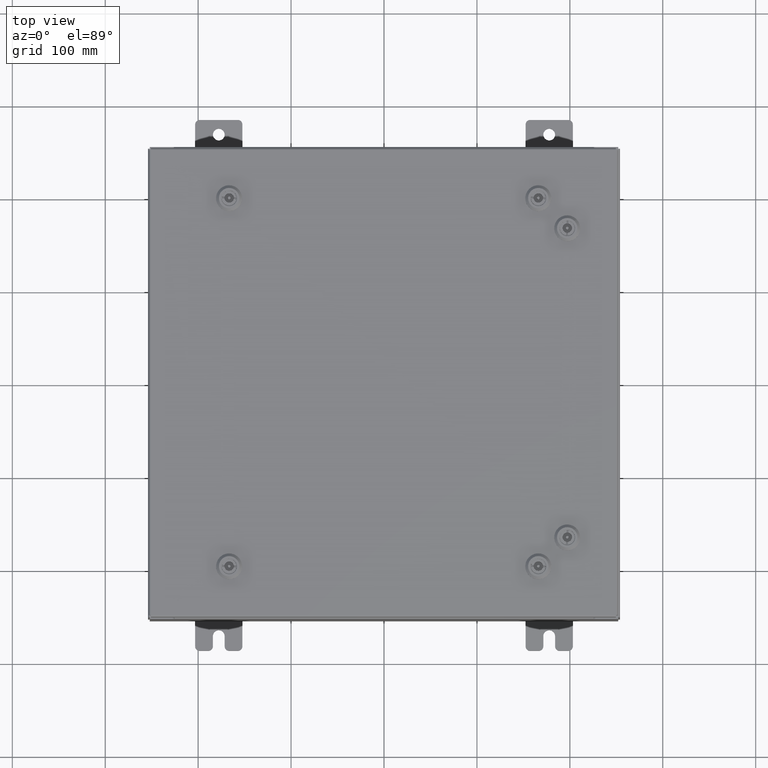
[diagram: clean part render]
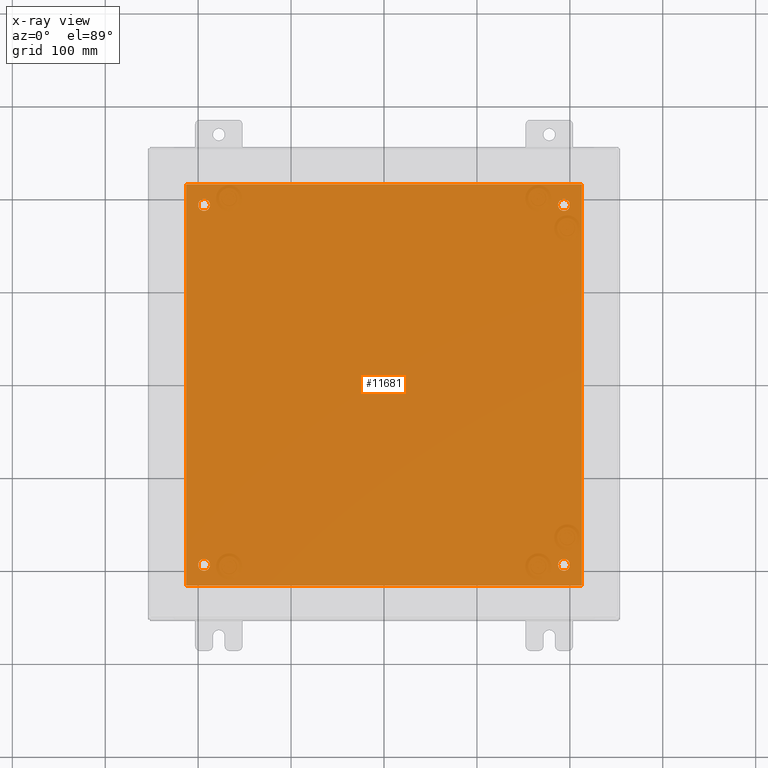
[diagram: x-ray — body ghosted, one internal face saturated and labeled with its STEP entity id]
A machine part, top view, then the same camera in x-ray: the body is ghosted and one INTERNAL B-rep face — a face not visible from any outside direction — is saturated and labeled: STEP entity #11681.
In plain terms, the highlighted planar face has unit normal (0, 0, -1).
Its self-contained STEP definition (entity closure, byte-faithful):
#61 = VERTEX_POINT ( 'NONE', #58724 ) ;
#1573 = EDGE_CURVE ( 'NONE', #51156, #23915, #54464, .T. ) ;
#1814 = ORIENTED_EDGE ( 'NONE', *, *, #21816, .T. ) ;
#2465 = AXIS2_PLACEMENT_3D ( 'NONE', #55428, #26418, #60316 ) ;
#2665 = EDGE_LOOP ( 'NONE', ( #1814, #16972 ) ) ;
#2974 = VECTOR ( 'NONE', #40721, 39.37007874015748100 ) ;
#3263 = DIRECTION ( 'NONE',  ( -1.000000000000000000, 0.0000000000000000000, -0.0000000000000000000 ) ) ;
#3598 = ORIENTED_EDGE ( 'NONE', *, *, #38884, .T. ) ;
#3764 = CARTESIAN_POINT ( 'NONE',  ( -7.375000000000001800, -7.625000000000000900, -0.1040000000000000400 ) ) ;
#4315 = EDGE_LOOP ( 'NONE', ( #61893, #30101 ) ) ;
#4579 = AXIS2_PLACEMENT_3D ( 'NONE', #9025, #42889, #13880 ) ;
#4630 = CIRCLE ( 'NONE', #50796, 0.2499999999999987000 ) ;
#5686 = EDGE_CURVE ( 'NONE', #46040, #41615, #11043, .T. ) ;
#6720 = VERTEX_POINT ( 'NONE', #42614 ) ;
#7828 = DIRECTION ( 'NONE',  ( -0.0000000000000000000, -0.0000000000000000000, 1.000000000000000000 ) ) ;
#7930 = EDGE_LOOP ( 'NONE', ( #49730, #56720 ) ) ;
#8932 = EDGE_CURVE ( 'NONE', #6720, #19762, #18370, .T. ) ;
#9025 = CARTESIAN_POINT ( 'NONE',  ( -7.625000000000001800, -7.625000000000000900, -0.1040000000000000400 ) ) ;
#10058 = EDGE_CURVE ( 'NONE', #41615, #46040, #28173, .T. ) ;
#10124 = CARTESIAN_POINT ( 'NONE',  ( 7.375000000000003600, 7.625000000000000900, -0.1040000000000000400 ) ) ;
#10714 = EDGE_CURVE ( 'NONE', #12834, #61419, #50074, .T. ) ;
#11043 = CIRCLE ( 'NONE', #2465, 0.2499999999999998100 ) ;
#11681 = ADVANCED_FACE ( 'NONE', ( #59873, #46985, #50016, #24247, #34094 ), #27418, .T. ) ;
#12834 = VERTEX_POINT ( 'NONE', #62352 ) ;
#13271 = CARTESIAN_POINT ( 'NONE',  ( -7.625000000000001800, 7.625000000000000900, -0.1040000000000000400 ) ) ;
#13880 = DIRECTION ( 'NONE',  ( -1.000000000000000000, 0.0000000000000000000, 0.0000000000000000000 ) ) ;
#13999 = CIRCLE ( 'NONE', #14157, 0.2499999999999987000 ) ;
#14157 = AXIS2_PLACEMENT_3D ( 'NONE', #36800, #7828, #41688 ) ;
#14701 = ORIENTED_EDGE ( 'NONE', *, *, #27938, .F. ) ;
#15275 = AXIS2_PLACEMENT_3D ( 'NONE', #56429, #32262, #3263 ) ;
#16373 = DIRECTION ( 'NONE',  ( -0.0000000000000000000, -0.0000000000000000000, 1.000000000000000000 ) ) ;
#16972 = ORIENTED_EDGE ( 'NONE', *, *, #41004, .T. ) ;
#18122 = DIRECTION ( 'NONE',  ( -1.000000000000000000, 0.0000000000000000000, 0.0000000000000000000 ) ) ;
#18370 = CIRCLE ( 'NONE', #4579, 0.2499999999999998100 ) ;
#19242 = CARTESIAN_POINT ( 'NONE',  ( 7.625000000000001800, 7.625000000000000900, -0.1040000000000000400 ) ) ;
#19408 = LINE ( 'NONE', #40565, #56537 ) ;
#19762 = VERTEX_POINT ( 'NONE', #3764 ) ;
#20187 = AXIS2_PLACEMENT_3D ( 'NONE', #19242, #53109, #24098 ) ;
#20917 = CARTESIAN_POINT ( 'NONE',  ( 7.875000000000000900, 7.625000000000000900, -0.1040000000000000400 ) ) ;
#21251 = CARTESIAN_POINT ( 'NONE',  ( 8.383000000000000900, -8.499999999999998200, -0.1039999999999997600 ) ) ;
#21816 = EDGE_CURVE ( 'NONE', #62093, #39176, #42924, .T. ) ;
#22187 = CIRCLE ( 'NONE', #24350, 0.2499999999999998100 ) ;
#22188 = EDGE_CURVE ( 'NONE', #60533, #61, #19408, .T. ) ;
#23858 = EDGE_CURVE ( 'NONE', #61419, #12834, #13999, .T. ) ;
#23915 = VERTEX_POINT ( 'NONE', #46983 ) ;
#24098 = DIRECTION ( 'NONE',  ( -1.000000000000000000, 0.0000000000000000000, 0.0000000000000000000 ) ) ;
#24247 = FACE_BOUND ( 'NONE', #7930, .T. ) ;
#24350 = AXIS2_PLACEMENT_3D ( 'NONE', #45368, #16373, #50257 ) ;
#25894 = LINE ( 'NONE', #28523, #50143 ) ;
#26418 = DIRECTION ( 'NONE',  ( -0.0000000000000000000, -0.0000000000000000000, 1.000000000000000000 ) ) ;
#26947 = AXIS2_PLACEMENT_3D ( 'NONE', #13271, #47153, #18122 ) ;
#27418 = PLANE ( 'NONE',  #15275 ) ;
#27815 = DIRECTION ( 'NONE',  ( -0.0000000000000000000, -0.0000000000000000000, 1.000000000000000000 ) ) ;
#27938 = EDGE_CURVE ( 'NONE', #23915, #60533, #50874, .T. ) ;
#28173 = CIRCLE ( 'NONE', #26947, 0.2499999999999998100 ) ;
#28490 = CARTESIAN_POINT ( 'NONE',  ( -8.382999999999999100, 8.500000000000000000, -0.1039999999999997600 ) ) ;
#28523 = CARTESIAN_POINT ( 'NONE',  ( -8.500000000000000000, -8.499999999999998200, -0.1040000000000000400 ) ) ;
#28658 = DIRECTION ( 'NONE',  ( -0.0000000000000000000, -0.0000000000000000000, 1.000000000000000000 ) ) ;
#28662 = AXIS2_PLACEMENT_3D ( 'NONE', #56812, #27815, #61691 ) ;
#30101 = ORIENTED_EDGE ( 'NONE', *, *, #10714, .T. ) ;
#32026 = CARTESIAN_POINT ( 'NONE',  ( -7.875000000000001800, 7.625000000000000900, -0.1040000000000000400 ) ) ;
#32262 = DIRECTION ( 'NONE',  ( 0.0000000000000000000, 0.0000000000000000000, -1.000000000000000000 ) ) ;
#34094 = FACE_OUTER_BOUND ( 'NONE', #44373, .T. ) ;
#36059 = ORIENTED_EDGE ( 'NONE', *, *, #8932, .T. ) ;
#36800 = CARTESIAN_POINT ( 'NONE',  ( 7.625000000000001800, -7.625000000000000900, -0.1040000000000000400 ) ) ;
#37987 = VECTOR ( 'NONE', #48395, 39.37007874015748100 ) ;
#38611 = CARTESIAN_POINT ( 'NONE',  ( -8.500000000000000000, 8.500000000000000000, -0.1040000000000000400 ) ) ;
#38884 = EDGE_CURVE ( 'NONE', #19762, #6720, #22187, .T. ) ;
#39176 = VERTEX_POINT ( 'NONE', #10124 ) ;
#39894 = CARTESIAN_POINT ( 'NONE',  ( 8.383000000000000900, -8.499999999999998200, -0.1040000000000000400 ) ) ;
#40565 = CARTESIAN_POINT ( 'NONE',  ( -8.382999999999999100, 8.500000000000000000, -0.1039999999999997600 ) ) ;
#40721 = DIRECTION ( 'NONE',  ( 0.0000000000000000000, 1.000000000000000000, 0.0000000000000000000 ) ) ;
#40809 = ORIENTED_EDGE ( 'NONE', *, *, #1573, .F. ) ;
#41004 = EDGE_CURVE ( 'NONE', #39176, #62093, #4630, .T. ) ;
#41615 = VERTEX_POINT ( 'NONE', #56324 ) ;
#41688 = DIRECTION ( 'NONE',  ( -1.000000000000000000, 0.0000000000000000000, 0.0000000000000000000 ) ) ;
#42614 = CARTESIAN_POINT ( 'NONE',  ( -7.875000000000001800, -7.625000000000000900, -0.1040000000000000400 ) ) ;
#42889 = DIRECTION ( 'NONE',  ( -0.0000000000000000000, -0.0000000000000000000, 1.000000000000000000 ) ) ;
#42924 = CIRCLE ( 'NONE', #20187, 0.2499999999999987000 ) ;
#44373 = EDGE_LOOP ( 'NONE', ( #61328, #53798, #14701, #40809 ) ) ;
#45368 = CARTESIAN_POINT ( 'NONE',  ( -7.625000000000001800, -7.625000000000000900, -0.1040000000000000400 ) ) ;
#46040 = VERTEX_POINT ( 'NONE', #32026 ) ;
#46983 = CARTESIAN_POINT ( 'NONE',  ( 8.383000000000000900, 8.500000000000000000, -0.1040000000000000400 ) ) ;
#46985 = FACE_BOUND ( 'NONE', #4315, .T. ) ;
#47153 = DIRECTION ( 'NONE',  ( -0.0000000000000000000, -0.0000000000000000000, 1.000000000000000000 ) ) ;
#47324 = EDGE_LOOP ( 'NONE', ( #3598, #36059 ) ) ;
#48395 = DIRECTION ( 'NONE',  ( -1.000000000000000000, -0.0000000000000000000, -0.0000000000000000000 ) ) ;
#49730 = ORIENTED_EDGE ( 'NONE', *, *, #10058, .T. ) ;
#50016 = FACE_BOUND ( 'NONE', #2665, .T. ) ;
#50074 = CIRCLE ( 'NONE', #28662, 0.2499999999999987000 ) ;
#50143 = VECTOR ( 'NONE', #62183, 39.37007874015748100 ) ;
#50257 = DIRECTION ( 'NONE',  ( -1.000000000000000000, 0.0000000000000000000, 0.0000000000000000000 ) ) ;
#50332 = DIRECTION ( 'NONE',  ( 0.0000000000000000000, -1.000000000000000000, 0.0000000000000000000 ) ) ;
#50796 = AXIS2_PLACEMENT_3D ( 'NONE', #57669, #28658, #62531 ) ;
#50874 = LINE ( 'NONE', #38611, #37987 ) ;
#51156 = VERTEX_POINT ( 'NONE', #39894 ) ;
#53109 = DIRECTION ( 'NONE',  ( -0.0000000000000000000, -0.0000000000000000000, 1.000000000000000000 ) ) ;
#53798 = ORIENTED_EDGE ( 'NONE', *, *, #22188, .F. ) ;
#54412 = CARTESIAN_POINT ( 'NONE',  ( 7.875000000000000900, -7.625000000000000900, -0.1040000000000000400 ) ) ;
#54464 = LINE ( 'NONE', #21251, #2974 ) ;
#55428 = CARTESIAN_POINT ( 'NONE',  ( -7.625000000000001800, 7.625000000000000900, -0.1040000000000000400 ) ) ;
#56324 = CARTESIAN_POINT ( 'NONE',  ( -7.375000000000001800, 7.625000000000000900, -0.1040000000000000400 ) ) ;
#56402 = EDGE_CURVE ( 'NONE', #61, #51156, #25894, .T. ) ;
#56429 = CARTESIAN_POINT ( 'NONE',  ( 0.0000000000000000000, 0.0000000000000000000, -0.1040000000000000400 ) ) ;
#56537 = VECTOR ( 'NONE', #50332, 39.37007874015748100 ) ;
#56720 = ORIENTED_EDGE ( 'NONE', *, *, #5686, .T. ) ;
#56812 = CARTESIAN_POINT ( 'NONE',  ( 7.625000000000001800, -7.625000000000000900, -0.1040000000000000400 ) ) ;
#57669 = CARTESIAN_POINT ( 'NONE',  ( 7.625000000000001800, 7.625000000000000900, -0.1040000000000000400 ) ) ;
#58724 = CARTESIAN_POINT ( 'NONE',  ( -8.382999999999999100, -8.499999999999998200, -0.1039999999999997600 ) ) ;
#59873 = FACE_BOUND ( 'NONE', #47324, .T. ) ;
#60316 = DIRECTION ( 'NONE',  ( -1.000000000000000000, 0.0000000000000000000, 0.0000000000000000000 ) ) ;
#60533 = VERTEX_POINT ( 'NONE', #28490 ) ;
#61328 = ORIENTED_EDGE ( 'NONE', *, *, #56402, .F. ) ;
#61419 = VERTEX_POINT ( 'NONE', #54412 ) ;
#61691 = DIRECTION ( 'NONE',  ( -1.000000000000000000, 0.0000000000000000000, 0.0000000000000000000 ) ) ;
#61893 = ORIENTED_EDGE ( 'NONE', *, *, #23858, .T. ) ;
#62093 = VERTEX_POINT ( 'NONE', #20917 ) ;
#62183 = DIRECTION ( 'NONE',  ( 1.000000000000000000, 0.0000000000000000000, 0.0000000000000000000 ) ) ;
#62352 = CARTESIAN_POINT ( 'NONE',  ( 7.375000000000003600, -7.625000000000000900, -0.1040000000000000400 ) ) ;
#62531 = DIRECTION ( 'NONE',  ( -1.000000000000000000, 0.0000000000000000000, 0.0000000000000000000 ) ) ;